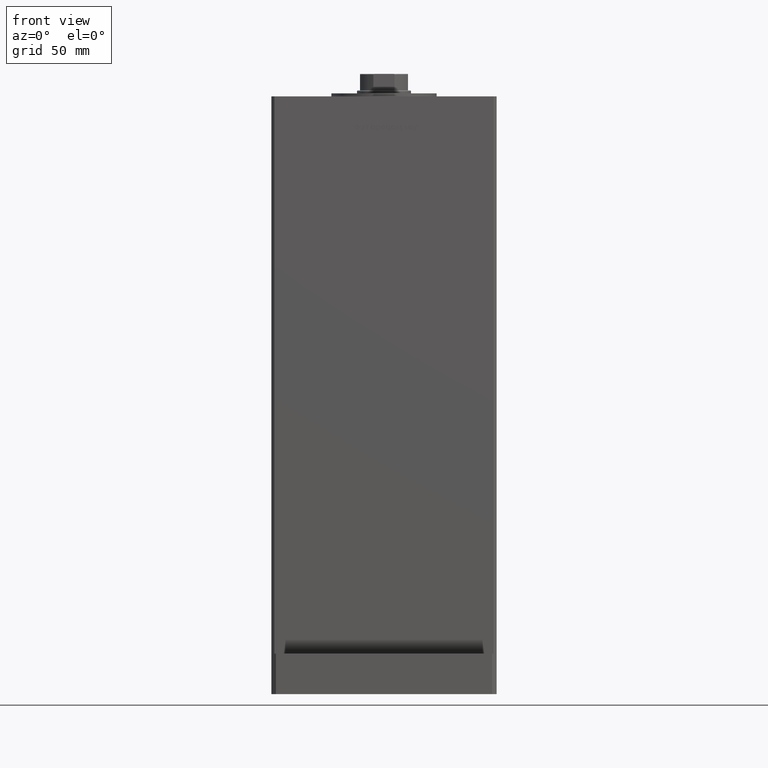
[diagram: clean part render]
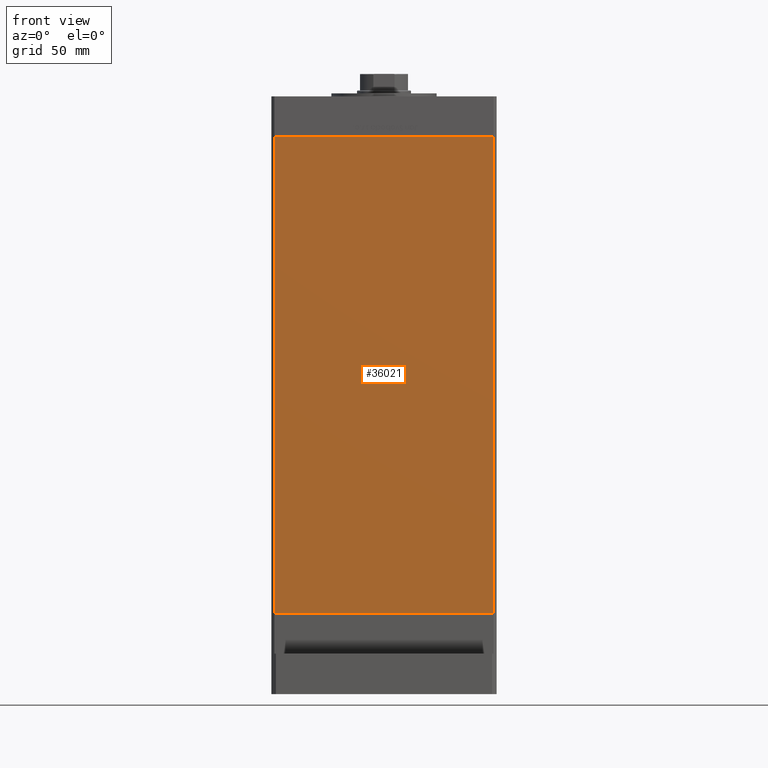
[diagram: same view with one face highlighted and labeled with its STEP entity id]
A machine part, front view. The second image highlights one B-rep face of the part: STEP entity #36021.
In plain terms, the highlighted planar face has unit normal (0, 1, 0).
Its self-contained STEP definition (entity closure, byte-faithful):
#241 = DIRECTION ( 'NONE',  ( 0.000000000000000000, -0.000000000000000000, 1.000000000000000000 ) ) ;
#604 = CARTESIAN_POINT ( 'NONE',  ( 72.99999999999998579, -62.50000000000000000, 317.0000000000000000 ) ) ;
#686 = CARTESIAN_POINT ( 'NONE',  ( -72.99999999999998579, -62.50000000000000000, 0.000000000000000000 ) ) ;
#1087 = ORIENTED_EDGE ( 'NONE', *, *, #3745, .T. ) ;
#3229 = VERTEX_POINT ( 'NONE', #6587 ) ;
#3745 = EDGE_CURVE ( 'NONE', #30384, #3229, #37259, .T. ) ;
#4415 = CARTESIAN_POINT ( 'NONE',  ( -72.99999999999998579, -62.50000000000000000, 317.0000000000000000 ) ) ;
#6587 = CARTESIAN_POINT ( 'NONE',  ( -72.99999999999998579, -62.50000000000000000, 0.000000000000000000 ) ) ;
#7635 = VECTOR ( 'NONE', #54191, 1000.000000000000000 ) ;
#9001 = LINE ( 'NONE', #29528, #11843 ) ;
#10338 = CARTESIAN_POINT ( 'NONE',  ( 72.99999999999998579, -62.50000000000000000, 0.000000000000000000 ) ) ;
#10958 = EDGE_LOOP ( 'NONE', ( #17438, #22821, #26307, #1087 ) ) ;
#11843 = VECTOR ( 'NONE', #51672, 1000.000000000000000 ) ;
#12816 = VECTOR ( 'NONE', #37329, 1000.000000000000000 ) ;
#13556 = EDGE_CURVE ( 'NONE', #3229, #52889, #31193, .T. ) ;
#16099 = EDGE_CURVE ( 'NONE', #30384, #28500, #9001, .T. ) ;
#17438 = ORIENTED_EDGE ( 'NONE', *, *, #13556, .T. ) ;
#20455 = LINE ( 'NONE', #23791, #12816 ) ;
#21333 = DIRECTION ( 'NONE',  ( 0.000000000000000000, 1.000000000000000000, 0.000000000000000000 ) ) ;
#22821 = ORIENTED_EDGE ( 'NONE', *, *, #23521, .F. ) ;
#23521 = EDGE_CURVE ( 'NONE', #28500, #52889, #20455, .T. ) ;
#23791 = CARTESIAN_POINT ( 'NONE',  ( 72.99999999999998579, -62.50000000000000000, 317.0000000000000000 ) ) ;
#25475 = FACE_OUTER_BOUND ( 'NONE', #10958, .T. ) ;
#26307 = ORIENTED_EDGE ( 'NONE', *, *, #16099, .F. ) ;
#28500 = VERTEX_POINT ( 'NONE', #604 ) ;
#29528 = CARTESIAN_POINT ( 'NONE',  ( -72.99999999999998579, -62.50000000000000000, 317.0000000000000000 ) ) ;
#30384 = VERTEX_POINT ( 'NONE', #52245 ) ;
#31193 = LINE ( 'NONE', #686, #38304 ) ;
#36021 = ADVANCED_FACE ( 'NONE', ( #25475 ), #42380, .F. ) ;
#37259 = LINE ( 'NONE', #45861, #7635 ) ;
#37329 = DIRECTION ( 'NONE',  ( -0.000000000000000000, -0.000000000000000000, -1.000000000000000000 ) ) ;
#38304 = VECTOR ( 'NONE', #47244, 1000.000000000000000 ) ;
#42380 = PLANE ( 'NONE',  #45117 ) ;
#45117 = AXIS2_PLACEMENT_3D ( 'NONE', #4415, #21333, #241 ) ;
#45861 = CARTESIAN_POINT ( 'NONE',  ( -72.99999999999998579, -62.50000000000000000, 317.0000000000000000 ) ) ;
#47244 = DIRECTION ( 'NONE',  ( 1.000000000000000000, 0.000000000000000000, 0.000000000000000000 ) ) ;
#51672 = DIRECTION ( 'NONE',  ( 1.000000000000000000, 0.000000000000000000, 0.000000000000000000 ) ) ;
#52245 = CARTESIAN_POINT ( 'NONE',  ( -72.99999999999998579, -62.50000000000000000, 317.0000000000000000 ) ) ;
#52889 = VERTEX_POINT ( 'NONE', #10338 ) ;
#54191 = DIRECTION ( 'NONE',  ( -0.000000000000000000, -0.000000000000000000, -1.000000000000000000 ) ) ;